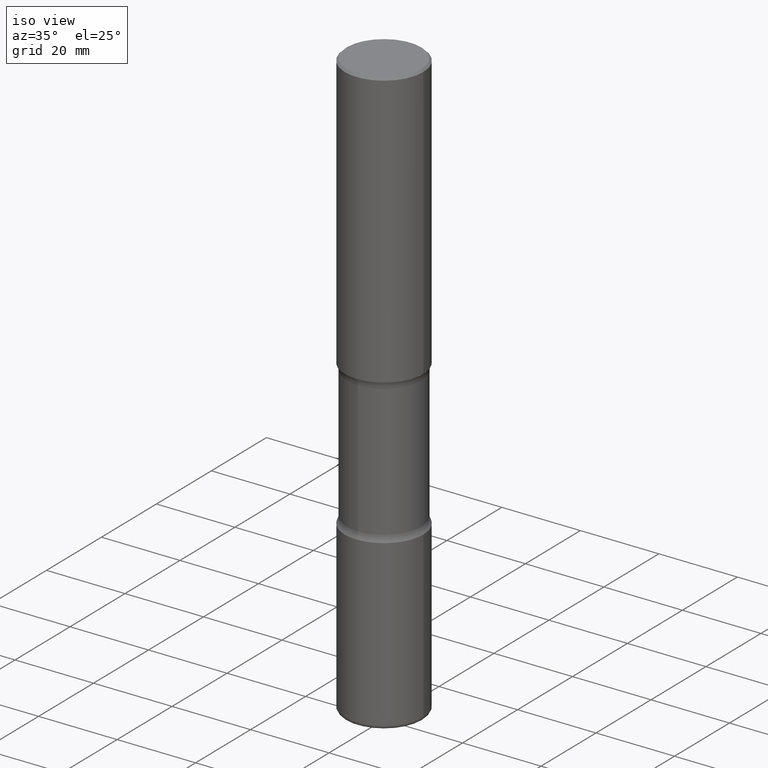
[diagram: clean part render]
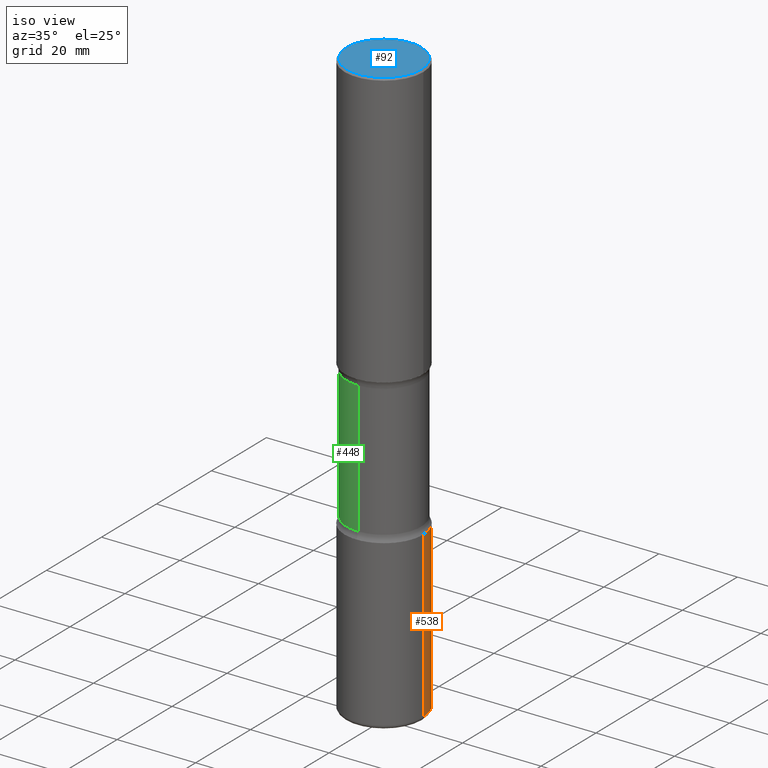
[diagram: same view with three faces highlighted in distinct colors, each labeled with its STEP entity id]
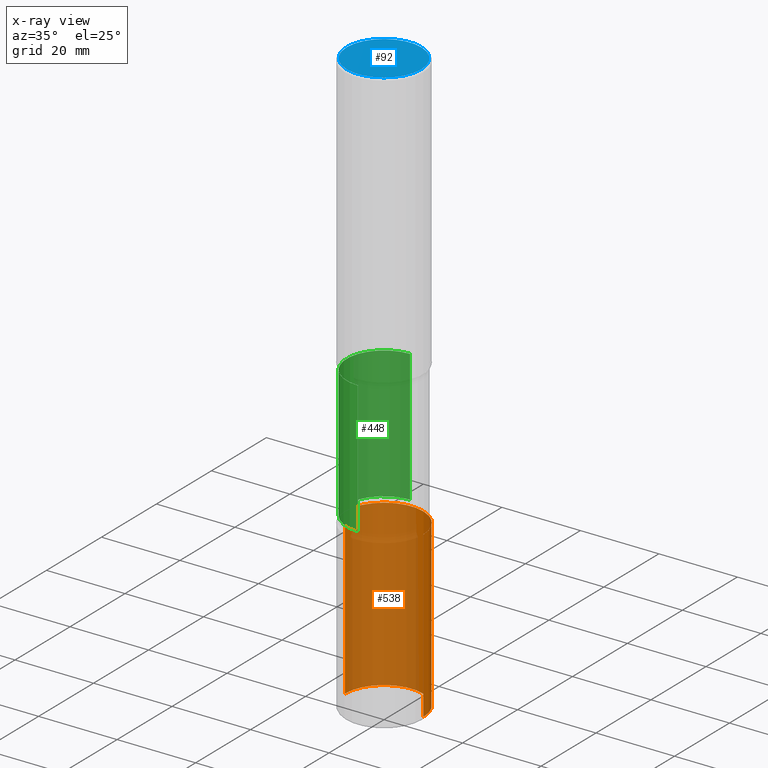
[diagram: x-ray of the same camera — body ghosted, the three highlighted faces saturated]
A machine part, iso view with three faces highlighted in distinct colors.
The next image is the same camera in x-ray (body ghosted, the three faces saturated) — at least one of them is partly hidden behind the body in this view.
Their STEP definitions:

[orange] entity #538 — the highlighted cylindrical surface (partial cylindrical patch) has radius 10 mm, axis along (-0, 0, 1).
#12 = CIRCLE ( 'NONE', #220, 0.3937000000000002720 ) ;
#26 = DIRECTION ( 'NONE',  ( -2.445468806185136597E-29, 3.491481338843145583E-15, 1.000000000000000000 ) ) ;
#30 = VERTEX_POINT ( 'NONE', #261 ) ;
#64 = ORIENTED_EDGE ( 'NONE', *, *, #487, .T. ) ;
#77 = DIRECTION ( 'NONE',  ( -2.445468806185136597E-29, 3.491481338843145583E-15, 1.000000000000000000 ) ) ;
#87 = VECTOR ( 'NONE', #251, 39.37007874015748143 ) ;
#93 = CYLINDRICAL_SURFACE ( 'NONE', #218, 0.3937000000000002164 ) ;
#99 = CARTESIAN_POINT ( 'NONE',  ( 0.000000000000000000, 0.000000000000000000, 0.000000000000000000 ) ) ;
#149 = CARTESIAN_POINT ( 'NONE',  ( 0.3937000000000002720, -1.745740669421571411E-14, -4.212599999999998346 ) ) ;
#154 = ORIENTED_EDGE ( 'NONE', *, *, #432, .F. ) ;
#158 = DIRECTION ( 'NONE',  ( 1.000000000000000000, -6.982962677686266711E-15, 4.876176775795935793E-29 ) ) ;
#160 = EDGE_CURVE ( 'NONE', #30, #325, #229, .T. ) ;
#162 = LINE ( 'NONE', #389, #87 ) ;
#171 = CARTESIAN_POINT ( 'NONE',  ( 0.3937000000000004385, -2.323057108799285912E-14, -5.866099999999998538 ) ) ;
#197 = CARTESIAN_POINT ( 'NONE',  ( 1.434536456396262699E-28, -2.048137868178777275E-14, -5.866099999999998538 ) ) ;
#200 = VERTEX_POINT ( 'NONE', #149 ) ;
#211 = DIRECTION ( 'NONE',  ( -2.445468806185136597E-29, 3.491481338843145583E-15, 1.000000000000000000 ) ) ;
#218 = AXIS2_PLACEMENT_3D ( 'NONE', #99, #211, #158 ) ;
#220 = AXIS2_PLACEMENT_3D ( 'NONE', #466, #77, #551 ) ;
#229 = LINE ( 'NONE', #324, #504 ) ;
#251 = DIRECTION ( 'NONE',  ( -2.445468806185136877E-29, 3.491481338843145188E-15, 1.000000000000000000 ) ) ;
#253 = AXIS2_PLACEMENT_3D ( 'NONE', #197, #26, #285 ) ;
#261 = CARTESIAN_POINT ( 'NONE',  ( -0.3937000000000004385, -1.768397193110025560E-14, -5.866099999999998538 ) ) ;
#273 = CIRCLE ( 'NONE', #253, 0.3937000000000002164 ) ;
#285 = DIRECTION ( 'NONE',  ( 1.000000000000000000, -6.982962677686265133E-15, 0.000000000000000000 ) ) ;
#319 = FACE_OUTER_BOUND ( 'NONE', #555, .T. ) ;
#324 = CARTESIAN_POINT ( 'NONE',  ( -0.3937000000000002164, 2.797406750687515970E-15, -1.936584745033357576E-29 ) ) ;
#325 = VERTEX_POINT ( 'NONE', #456 ) ;
#365 = EDGE_CURVE ( 'NONE', #541, #200, #162, .T. ) ;
#366 = ORIENTED_EDGE ( 'NONE', *, *, #365, .F. ) ;
#373 = DIRECTION ( 'NONE',  ( -2.445468806185136877E-29, 3.491481338843145188E-15, 1.000000000000000000 ) ) ;
#389 = CARTESIAN_POINT ( 'NONE',  ( 0.3937000000000002164, -2.749192406205084794E-15, 1.919750796630861012E-29 ) ) ;
#432 = EDGE_CURVE ( 'NONE', #200, #325, #12, .T. ) ;
#456 = CARTESIAN_POINT ( 'NONE',  ( -0.3937000000000002720, -1.479738973421168625E-14, -4.212599999999998346 ) ) ;
#466 = CARTESIAN_POINT ( 'NONE',  ( 1.030178189293550378E-28, -1.470821428801063089E-14, -4.212599999999998346 ) ) ;
#467 = ORIENTED_EDGE ( 'NONE', *, *, #160, .T. ) ;
#487 = EDGE_CURVE ( 'NONE', #541, #30, #273, .T. ) ;
#504 = VECTOR ( 'NONE', #373, 39.37007874015748143 ) ;
#538 = ADVANCED_FACE ( 'NONE', ( #319 ), #93, .T. ) ;
#541 = VERTEX_POINT ( 'NONE', #171 ) ;
#551 = DIRECTION ( 'NONE',  ( 1.000000000000000000, -6.982962677686269077E-15, 0.000000000000000000 ) ) ;
#555 = EDGE_LOOP ( 'NONE', ( #64, #467, #154, #366 ) ) ;

[blue] entity #92 — the highlighted planar face has unit normal (0, -0, -1).
#1 = DIRECTION ( 'NONE',  ( -2.445468806185136597E-29, 3.491481338843145583E-15, 1.000000000000000000 ) ) ;
#7 = CARTESIAN_POINT ( 'NONE',  ( 2.609533152651356620E-15, 0.3736999999999999211, -1.300498063835582814E-15 ) ) ;
#53 = AXIS2_PLACEMENT_3D ( 'NONE', #521, #83, #265 ) ;
#83 = DIRECTION ( 'NONE',  ( -2.445468806185136597E-29, 3.491481338843145583E-15, 1.000000000000000000 ) ) ;
#89 = EDGE_CURVE ( 'NONE', #280, #138, #354, .T. ) ;
#92 = ADVANCED_FACE ( 'NONE', ( #445 ), #214, .F. ) ;
#138 = VERTEX_POINT ( 'NONE', #231 ) ;
#214 = PLANE ( 'NONE',  #318 ) ;
#231 = CARTESIAN_POINT ( 'NONE',  ( -0.3736999999999999211, 2.644447966039788269E-15, 8.537024980182450727E-18 ) ) ;
#263 = CIRCLE ( 'NONE', #529, 0.3736999999999999211 ) ;
#265 = DIRECTION ( 'NONE',  ( 1.000000000000000000, -6.982962677686266711E-15, 4.876212485538976239E-29 ) ) ;
#280 = VERTEX_POINT ( 'NONE', #313 ) ;
#313 = CARTESIAN_POINT ( 'NONE',  ( 0.3736999999999999211, -2.667287895133367964E-15, 8.537024980219274507E-18 ) ) ;
#318 = AXIS2_PLACEMENT_3D ( 'NONE', #7, #447, #451 ) ;
#352 = DIRECTION ( 'NONE',  ( 1.000000000000000000, -6.982962677686266711E-15, 4.876212485538976239E-29 ) ) ;
#354 = CIRCLE ( 'NONE', #53, 0.3736999999999999211 ) ;
#380 = EDGE_LOOP ( 'NONE', ( #511, #437 ) ) ;
#400 = CARTESIAN_POINT ( 'NONE',  ( -2.087702828670439639E-46, 2.980686340760894400E-32, 8.537024980200822558E-18 ) ) ;
#406 = EDGE_CURVE ( 'NONE', #138, #280, #263, .T. ) ;
#437 = ORIENTED_EDGE ( 'NONE', *, *, #89, .T. ) ;
#445 = FACE_OUTER_BOUND ( 'NONE', #380, .T. ) ;
#447 = DIRECTION ( 'NONE',  ( 2.438088387897960049E-29, -3.491481338843145188E-15, -1.000000000000000000 ) ) ;
#451 = DIRECTION ( 'NONE',  ( -1.000000000000000000, 6.982962677686265922E-15, -4.876176775795935793E-29 ) ) ;
#511 = ORIENTED_EDGE ( 'NONE', *, *, #406, .T. ) ;
#521 = CARTESIAN_POINT ( 'NONE',  ( -2.087702828670439639E-46, 2.980686340760894400E-32, 8.537024980200822558E-18 ) ) ;
#529 = AXIS2_PLACEMENT_3D ( 'NONE', #400, #1, #352 ) ;

[green] entity #448 — the highlighted cylindrical surface (partial cylindrical patch) has radius 9.4996 mm, axis along (0, -0, -1).
#6 = AXIS2_PLACEMENT_3D ( 'NONE', #433, #38, #35 ) ;
#11 = EDGE_CURVE ( 'NONE', #15, #435, #157, .T. ) ;
#15 = VERTEX_POINT ( 'NONE', #68 ) ;
#35 = DIRECTION ( 'NONE',  ( 6.982962677686266711E-15, 1.000000000000000000, -2.921762560068729411E-15 ) ) ;
#38 = DIRECTION ( 'NONE',  ( 2.499563752616943710E-29, -3.414014296659653741E-15, -1.000000000000000000 ) ) ;
#41 = CARTESIAN_POINT ( 'NONE',  ( 6.829029461346524548E-29, -9.964976017815853586E-15, -2.823256588393414646 ) ) ;
#44 = AXIS2_PLACEMENT_3D ( 'NONE', #510, #293, #296 ) ;
#68 = CARTESIAN_POINT ( 'NONE',  ( 2.611628041454733028E-15, 0.3739999999999901736, -2.823256588393415534 ) ) ;
#69 = CYLINDRICAL_SURFACE ( 'NONE', #6, 0.3740000000000001656 ) ;
#101 = ORIENTED_EDGE ( 'NONE', *, *, #312, .T. ) ;
#118 = VERTEX_POINT ( 'NONE', #283 ) ;
#130 = DIRECTION ( 'NONE',  ( 2.499563752616943710E-29, -3.414014296659653741E-15, -1.000000000000000000 ) ) ;
#157 = LINE ( 'NONE', #340, #332 ) ;
#185 = VECTOR ( 'NONE', #130, 39.37007874015748143 ) ;
#208 = DIRECTION ( 'NONE',  ( 6.982962677686266711E-15, 1.000000000000000000, -2.921762560068729411E-15 ) ) ;
#215 = CARTESIAN_POINT ( 'NONE',  ( -2.565826251166408560E-15, -0.3740000000000206493, -5.905499999999997307 ) ) ;
#242 = DIRECTION ( 'NONE',  ( 2.499563752616943710E-29, -3.414014296659653741E-15, -1.000000000000000000 ) ) ;
#270 = ORIENTED_EDGE ( 'NONE', *, *, #443, .F. ) ;
#283 = CARTESIAN_POINT ( 'NONE',  ( -2.633402156444536217E-15, -0.3740000000000101577, -2.823256588393413313 ) ) ;
#293 = DIRECTION ( 'NONE',  ( 2.499563752616943710E-29, -3.414014296659653741E-15, -1.000000000000000000 ) ) ;
#296 = DIRECTION ( 'NONE',  ( 6.982962677686266711E-15, 1.000000000000000000, -2.921762560068729411E-15 ) ) ;
#307 = CIRCLE ( 'NONE', #44, 0.3740000000000001656 ) ;
#312 = EDGE_CURVE ( 'NONE', #118, #15, #526, .T. ) ;
#332 = VECTOR ( 'NONE', #478, 39.37007874015748143 ) ;
#338 = CARTESIAN_POINT ( 'NONE',  ( 2.611628041454766160E-15, 0.3739999999999856772, -4.145243411606584161 ) ) ;
#340 = CARTESIAN_POINT ( 'NONE',  ( 2.611628041454809941E-15, 0.3739999999999796820, -5.905499999999999972 ) ) ;
#345 = FACE_OUTER_BOUND ( 'NONE', #548, .T. ) ;
#363 = ORIENTED_EDGE ( 'NONE', *, *, #11, .T. ) ;
#408 = VERTEX_POINT ( 'NONE', #520 ) ;
#421 = ORIENTED_EDGE ( 'NONE', *, *, #557, .F. ) ;
#433 = CARTESIAN_POINT ( 'NONE',  ( 1.453329336974072664E-28, -2.048779909082575425E-14, -5.905499999999998195 ) ) ;
#435 = VERTEX_POINT ( 'NONE', #338 ) ;
#443 = EDGE_CURVE ( 'NONE', #408, #435, #307, .T. ) ;
#448 = ADVANCED_FACE ( 'NONE', ( #345 ), #69, .T. ) ;
#478 = DIRECTION ( 'NONE',  ( 2.499563752616943710E-29, -3.414014296659653741E-15, -1.000000000000000000 ) ) ;
#485 = LINE ( 'NONE', #215, #185 ) ;
#510 = CARTESIAN_POINT ( 'NONE',  ( 1.013341980608738414E-28, -1.447825793226129018E-14, -4.145243411606583273 ) ) ;
#518 = AXIS2_PLACEMENT_3D ( 'NONE', #41, #242, #208 ) ;
#520 = CARTESIAN_POINT ( 'NONE',  ( -2.633402156444500718E-15, -0.3740000000000146541, -4.145243411606582384 ) ) ;
#526 = CIRCLE ( 'NONE', #518, 0.3740000000000001656 ) ;
#548 = EDGE_LOOP ( 'NONE', ( #421, #101, #363, #270 ) ) ;
#557 = EDGE_CURVE ( 'NONE', #118, #408, #485, .T. ) ;